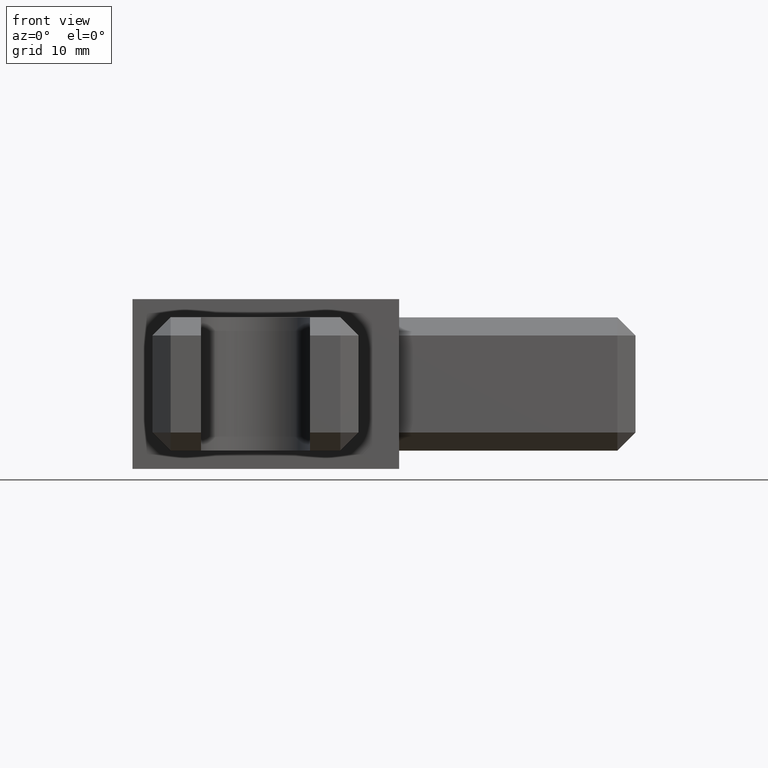
[diagram: clean part render]
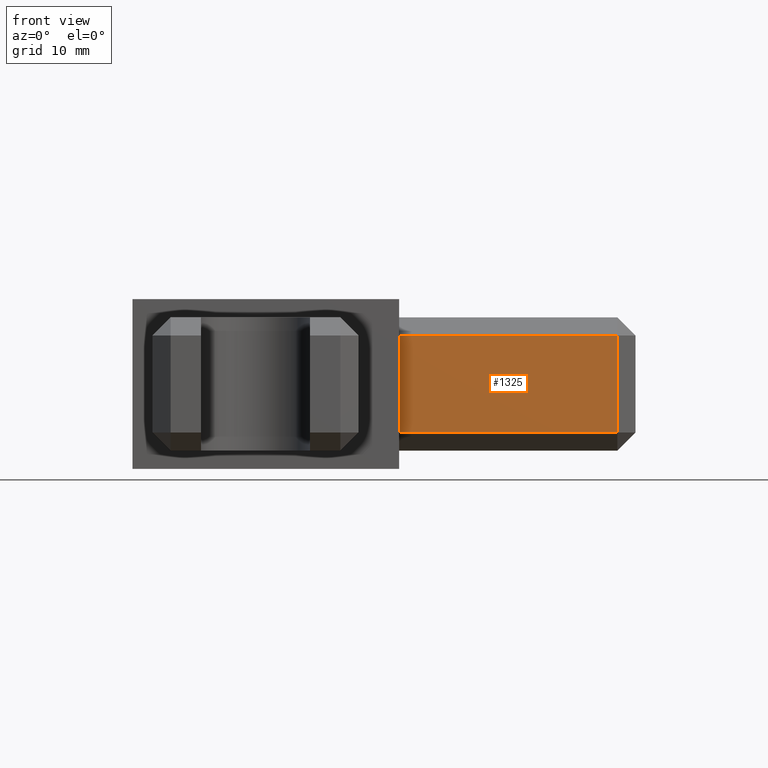
[diagram: same view with one face highlighted and labeled with its STEP entity id]
A machine part, front view. The second image highlights one B-rep face of the part: STEP entity #1325.
In plain terms, the highlighted planar face has unit normal (0, 1, 0).
Its self-contained STEP definition (entity closure, byte-faithful):
#9 = DIRECTION ( 'NONE',  ( -0.0000000000000000000, -0.0000000000000000000, 1.000000000000000000 ) ) ;
#33 = LINE ( 'NONE', #38, #1432 ) ;
#38 = CARTESIAN_POINT ( 'NONE',  ( 506.7937601056900100, 397.5950700072845100, 23.55501611203464700 ) ) ;
#56 = CARTESIAN_POINT ( 'NONE',  ( 524.7937601056900100, 397.5950700072845100, 23.55501611203464700 ) ) ;
#74 = LINE ( 'NONE', #56, #1477 ) ;
#97 = DIRECTION ( 'NONE',  ( -0.0000000000000000000, -0.0000000000000000000, 1.000000000000000000 ) ) ;
#209 = PLANE ( 'NONE',  #1486 ) ;
#227 = DIRECTION ( 'NONE',  ( 0.0000000000000000000, 1.000000000000000000, 0.0000000000000000000 ) ) ;
#232 = FACE_OUTER_BOUND ( 'NONE', #932, .T. ) ;
#235 = CARTESIAN_POINT ( 'NONE',  ( 524.7937601056900100, 397.5950700072845100, 23.55501611203464700 ) ) ;
#236 = DIRECTION ( 'NONE',  ( 0.0000000000000000000, -0.0000000000000000000, 1.000000000000000000 ) ) ;
#314 = EDGE_CURVE ( 'NONE', #615, #601, #1038, .T. ) ;
#327 = EDGE_CURVE ( 'NONE', #636, #613, #1034, .T. ) ;
#601 = VERTEX_POINT ( 'NONE', #1192 ) ;
#613 = VERTEX_POINT ( 'NONE', #1176 ) ;
#615 = VERTEX_POINT ( 'NONE', #1193 ) ;
#636 = VERTEX_POINT ( 'NONE', #1217 ) ;
#724 = ORIENTED_EDGE ( 'NONE', *, *, #327, .T. ) ;
#729 = ORIENTED_EDGE ( 'NONE', *, *, #314, .T. ) ;
#753 = ORIENTED_EDGE ( 'NONE', *, *, #1298, .T. ) ;
#759 = ORIENTED_EDGE ( 'NONE', *, *, #1272, .F. ) ;
#932 = EDGE_LOOP ( 'NONE', ( #753, #724, #759, #729 ) ) ;
#1028 = DIRECTION ( 'NONE',  ( 1.000000000000000000, 1.779203565104414900E-016, 0.0000000000000000000 ) ) ;
#1034 = LINE ( 'NONE', #1035, #1369 ) ;
#1035 = CARTESIAN_POINT ( 'NONE',  ( 506.7937601056900100, 397.5950700072845100, 27.70501611203465200 ) ) ;
#1038 = LINE ( 'NONE', #1045, #1349 ) ;
#1041 = DIRECTION ( 'NONE',  ( -1.000000000000000000, -1.779203565104414900E-016, 0.0000000000000000000 ) ) ;
#1045 = CARTESIAN_POINT ( 'NONE',  ( 506.7937601056900100, 397.5950700072845100, 19.70501611203464900 ) ) ;
#1176 = CARTESIAN_POINT ( 'NONE',  ( 506.7937601056900100, 397.5950700072845100, 27.70501611203465200 ) ) ;
#1192 = CARTESIAN_POINT ( 'NONE',  ( 524.7937601056900100, 397.5950700072845100, 19.70501611203464900 ) ) ;
#1193 = CARTESIAN_POINT ( 'NONE',  ( 506.7937601056900100, 397.5950700072845100, 19.70501611203461000 ) ) ;
#1217 = CARTESIAN_POINT ( 'NONE',  ( 524.7937601056900100, 397.5950700072845100, 27.70501611203465200 ) ) ;
#1272 = EDGE_CURVE ( 'NONE', #615, #613, #33, .T. ) ;
#1298 = EDGE_CURVE ( 'NONE', #601, #636, #74, .T. ) ;
#1325 = ADVANCED_FACE ( 'NONE', ( #232 ), #209, .F. ) ;
#1349 = VECTOR ( 'NONE', #1028, 1000.000000000000000 ) ;
#1369 = VECTOR ( 'NONE', #1041, 1000.000000000000000 ) ;
#1432 = VECTOR ( 'NONE', #9, 1000.000000000000000 ) ;
#1477 = VECTOR ( 'NONE', #97, 1000.000000000000000 ) ;
#1486 = AXIS2_PLACEMENT_3D ( 'NONE', #235, #227, #236 ) ;